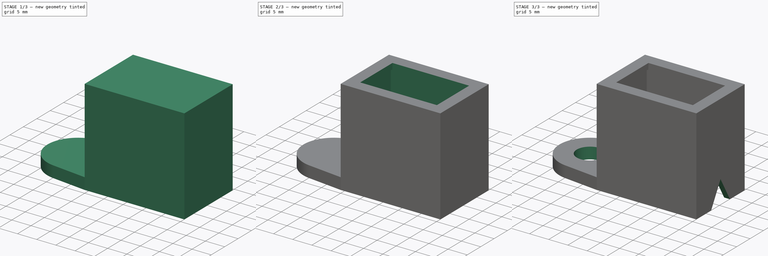
[diagram: build sequence overview — one tinted view per stage of 3, left to right]
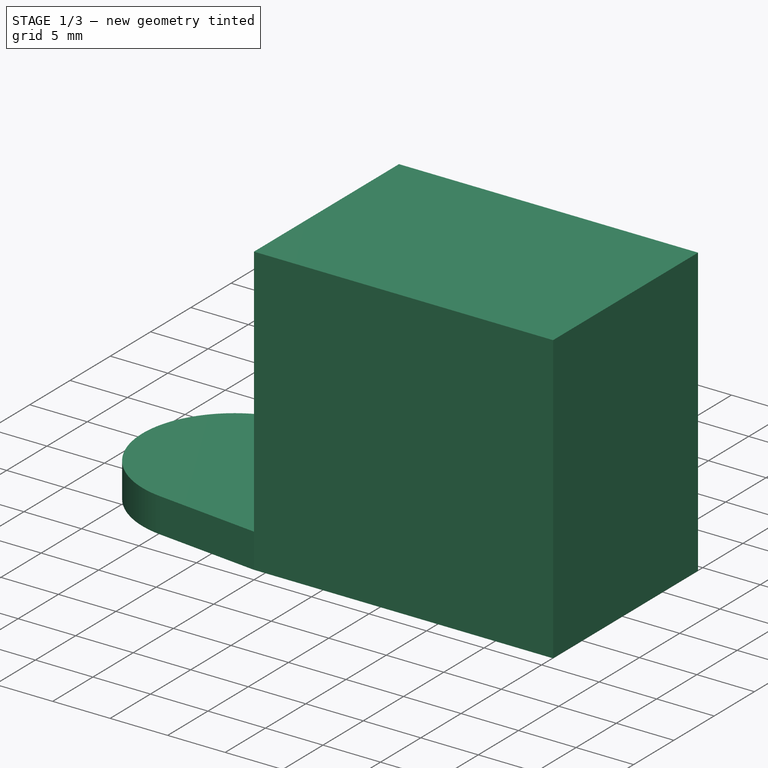
[diagram: stage 1 of 3 — iso view after this stage's code; geometry added in this stage tinted green]
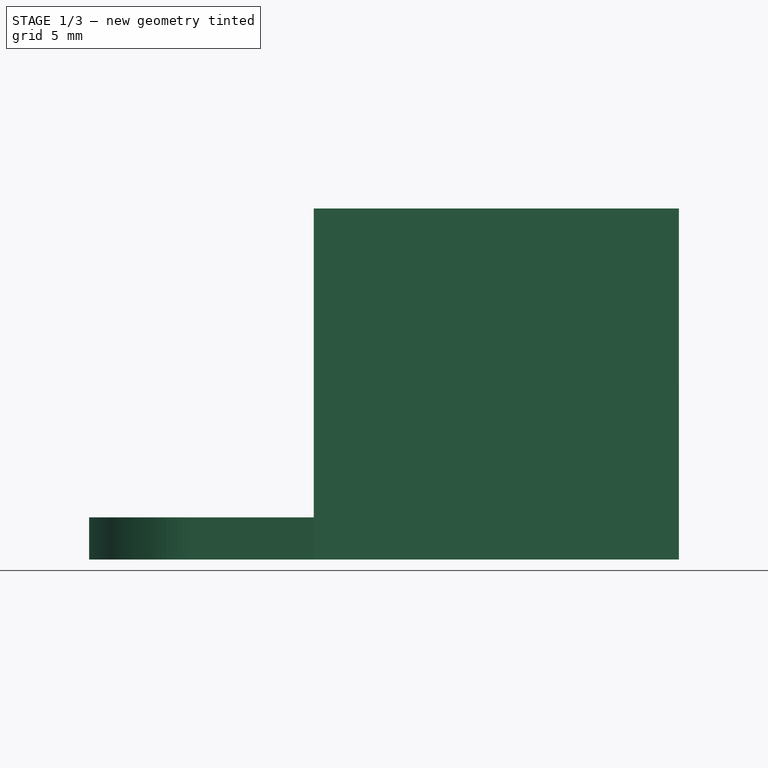
[diagram: stage 1 of 3 — front view after this stage's code; geometry added in this stage tinted green]
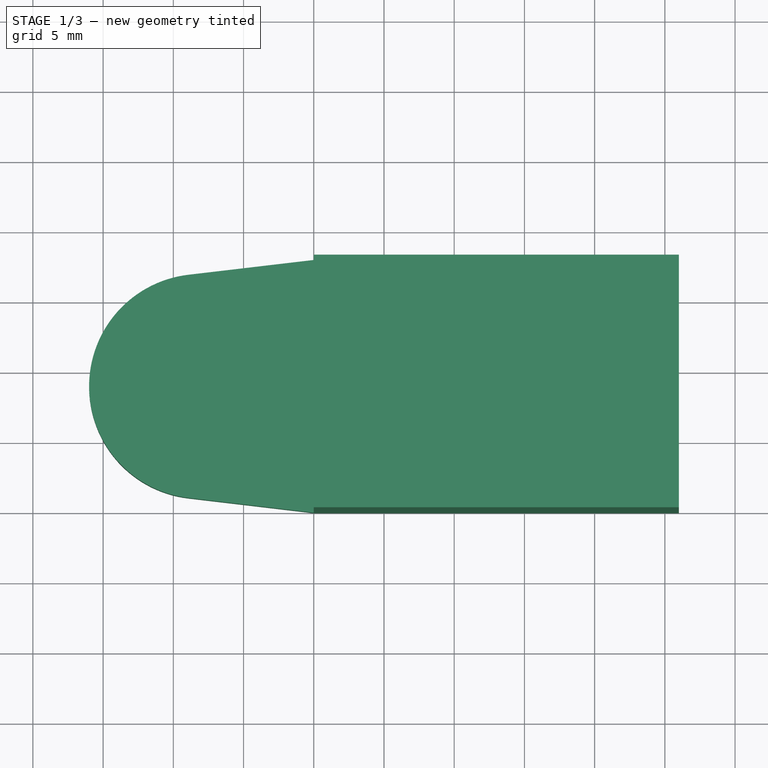
[diagram: stage 1 of 3 — top view after this stage's code; geometry added in this stage tinted green]
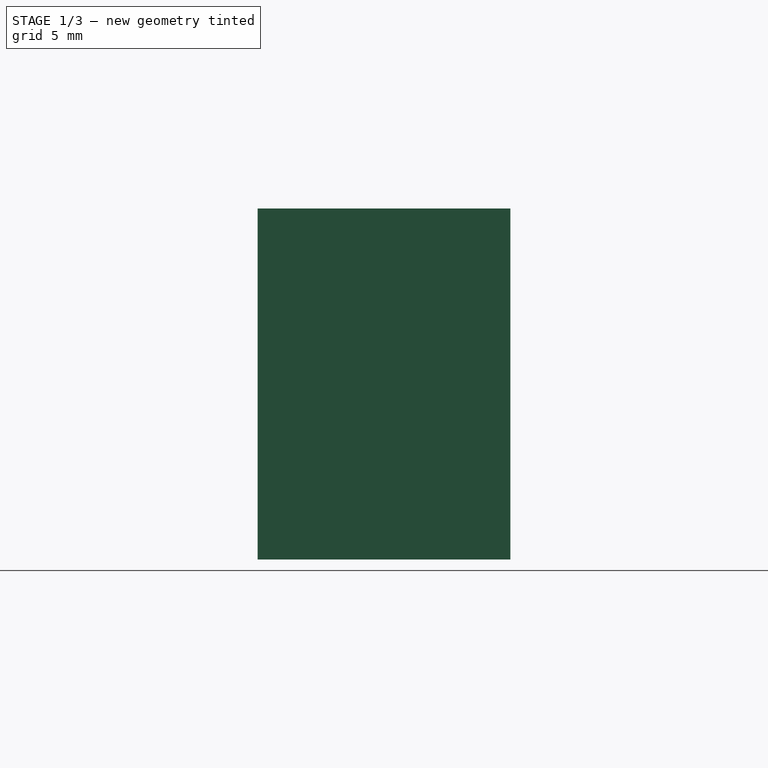
[diagram: stage 1 of 3 — right view after this stage's code; geometry added in this stage tinted green]
FCSTD DOCUMENT  (FreeCAD 2024.1R35694 (Git))
Label: switch_mount
License: All rights reserved
LicenseURL: http://en.wikipedia.org/wiki/All_rights_reserved
objects: Sketcher::SketchObject×6, PartDesign::Pocket×4, PartDesign::Pad×2, Spreadsheet::Sheet×1, PartDesign::Body×1
note: 19 computed .brp shape members not serialized (recipe doc carries the construction recipe); baked Part::Feature solids carry a one-line shape summary decoded from their .brp

FEATURE [Spreadsheet::Sheet] Spreadsheet  label="ss"
  cells = A1='whole_spacing; B1(whole_spacing)=25; A2='m6_hole_d; B2(m6_hole_d)=7; A3='wall_t; B3(wall_t)=1.5; A4='hole_w; B4(hole_w)=12; A5='hole_l; B5(hole_l)=20; A6='box_h; B6(box_h)=25; A7='box_l; B7(box_l)=26; A8='box_w; B8(box_w)=18; A9='insert_h; B9(insert_h)==box_h - wall_t; A10='insert_w; B10(insert_w)==box_w - 2 * wall_t; A11='insert_l; B11(insert_l)==box_l - 2 * wall_t; A12='m6_head_d; B12(m6_head_d)=10
FEATURE [Sketcher::SketchObject] Sketch
  FullyConstrained = true
  MapMode = 5
  Support = -> [XY_Plane]
  expr: Constraints[10] = <<ss>>.box_w
  expr: Constraints[11] = <<ss>>.box_l
  expr: Constraints[12] = <<ss>>.m6_head_d / 2 + 2 * <<ss>>.wall_t
  expr: Constraints[14] = <<ss>>.m6_head_d / 2 + 2 * <<ss>>.wall_t
  expr: Constraints[15] = <<ss>>.box_w / 2
  sketch-geometry (6):
    g0: LineSegment StartX=0 StartY=0 StartZ=0 EndX=26 EndY=0 EndZ=0
    g1: LineSegment StartX=26 StartY=0 StartZ=0 EndX=26 EndY=18 EndZ=0
    g2: LineSegment StartX=26 StartY=18 StartZ=0 EndX=0 EndY=18 EndZ=0
    g3: LineSegment StartX=0 StartY=18 StartZ=0 EndX=-8.93793 EndY=16.9448 EndZ=0
    g4: ArcOfCircle CenterX=-8 CenterY=9 CenterZ=0 NormalX=0 NormalY=0 NormalZ=1 AngleXU=0 Radius=8 StartAngle=1.68831 EndAngle=4.59488
    g5: LineSegment StartX=-8.93793 StartY=1.05517 StartZ=0 EndX=0 EndY=0 EndZ=0
  constraints (16):
    c: Coincident(g-1,g0)
    c: Horizontal(g0)
    c: Coincident(g0,g1)
    c: Vertical(g1)
    c: Coincident(g1,g2)
    c: PointOnObject(g2,g-2)
    c: Horizontal(g2)
    c: Coincident(g2,g3)
    c: Tangent(g3,g4) = -1.5708
    c: Coincident(g5,g0)
    c: DistanceY(g1,g1) = 18
    c: DistanceX(g2,g2) = 26
    c: Radius(g4) = 8
    c: Tangent(g4,g5) = -1.5708
    c: DistanceX(g4,g2) = 8
    c: DistanceY(g4,g2) = 9
FEATURE [PartDesign::Pad] Pad
  Direction = (0,0,1)
  Length = 3
  Length2 = 10
  Profile = -> Sketch
  ReferenceAxis = -> Sketch [N_Axis]
  Refine = true
  Type = 0
  expr: Length = <<ss>>.wall_t * 2
FEATURE [Sketcher::SketchObject] Sketch001
  ExternalGeometry = -> [Pad]
  FullyConstrained = true
  MapMode = 5
  Placement = pos=(0,0,3) rot=(0,0,1;0rad)
  Support = -> [Pad]
  sketch-geometry (4):
    g0: LineSegment StartX=0 StartY=0 StartZ=0 EndX=26 EndY=0 EndZ=0
    g1: LineSegment StartX=26 StartY=0 StartZ=0 EndX=26 EndY=18 EndZ=0
    g2: LineSegment StartX=26 StartY=18 StartZ=0 EndX=0 EndY=18 EndZ=0
    g3: LineSegment StartX=0 StartY=18 StartZ=0 EndX=0 EndY=0 EndZ=0
  constraints (10):
    c: Coincident(g0,g1)
    c: Coincident(g1,g2)
    c: Coincident(g2,g3)
    c: Coincident(g3,g0)
    c: Horizontal(g0)
    c: Horizontal(g2)
    c: Vertical(g1)
    c: Vertical(g3)
    c: Coincident(g0,g-1)
    c: Coincident(g1,g-5)
FEATURE [PartDesign::Pad] Pad001
  BaseFeature = -> Pad
  Direction = (0,0,1)
  Length = 22
  Length2 = 10
  Profile = -> Sketch001
  ReferenceAxis = -> Sketch001 [N_Axis]
  Refine = true
  Type = 0
  expr: Length = <<ss>>.box_h - 2 * <<ss>>.wall_t
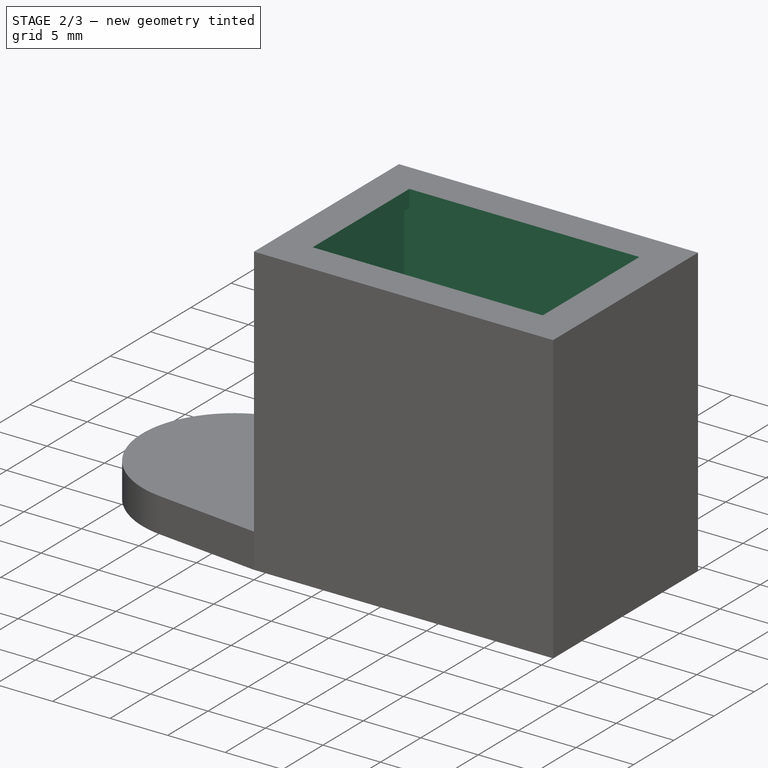
[diagram: stage 2 of 3 — iso view after this stage's code; geometry added in this stage tinted green]
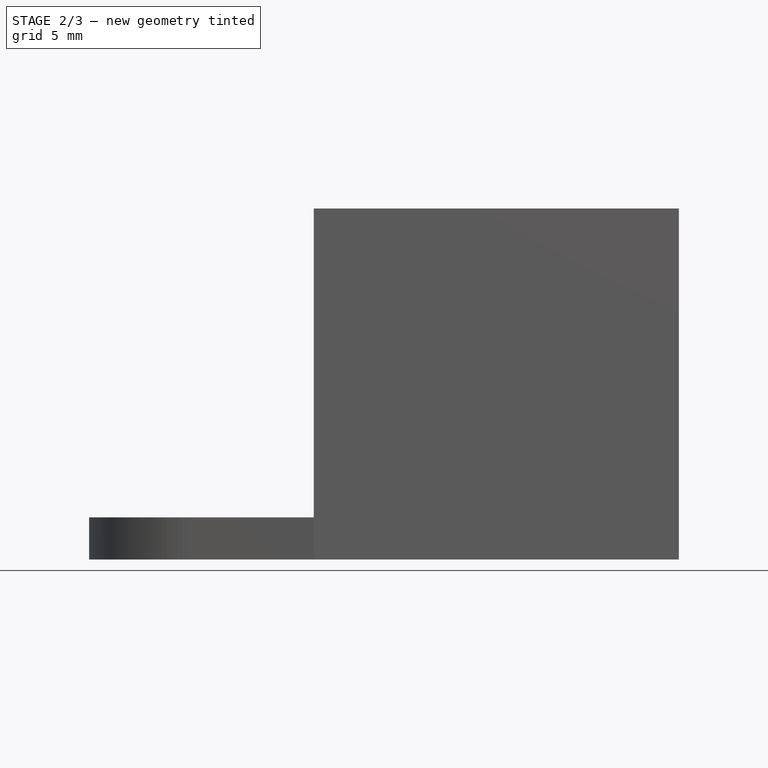
[diagram: stage 2 of 3 — front view after this stage's code; geometry added in this stage tinted green]
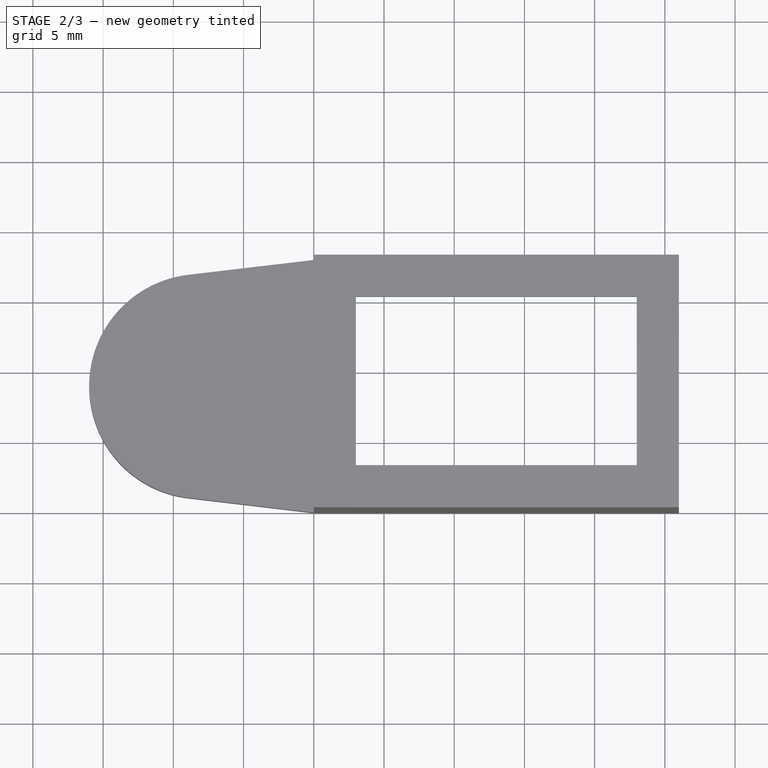
[diagram: stage 2 of 3 — top view after this stage's code; geometry added in this stage tinted green]
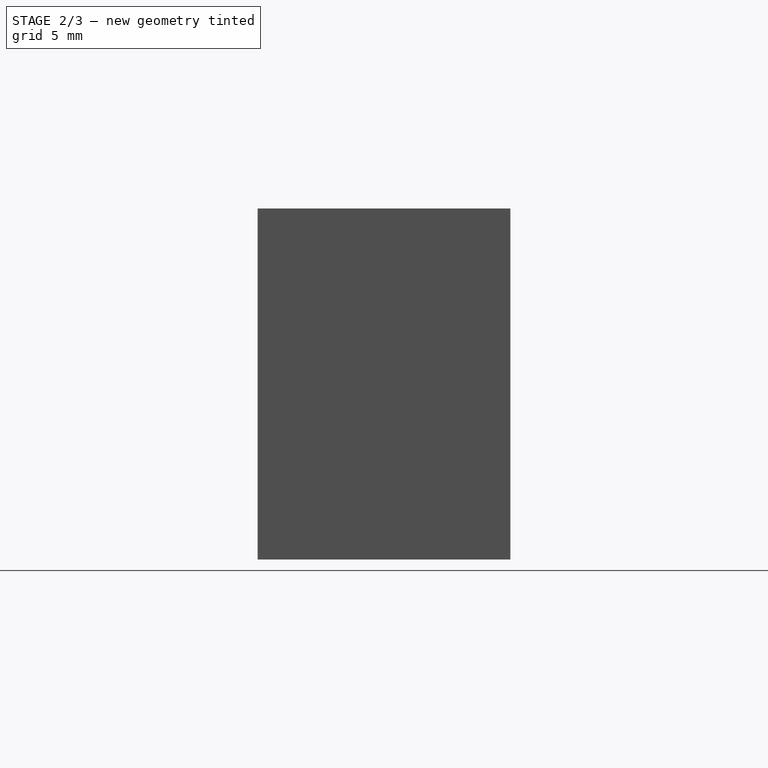
[diagram: stage 2 of 3 — right view after this stage's code; geometry added in this stage tinted green]
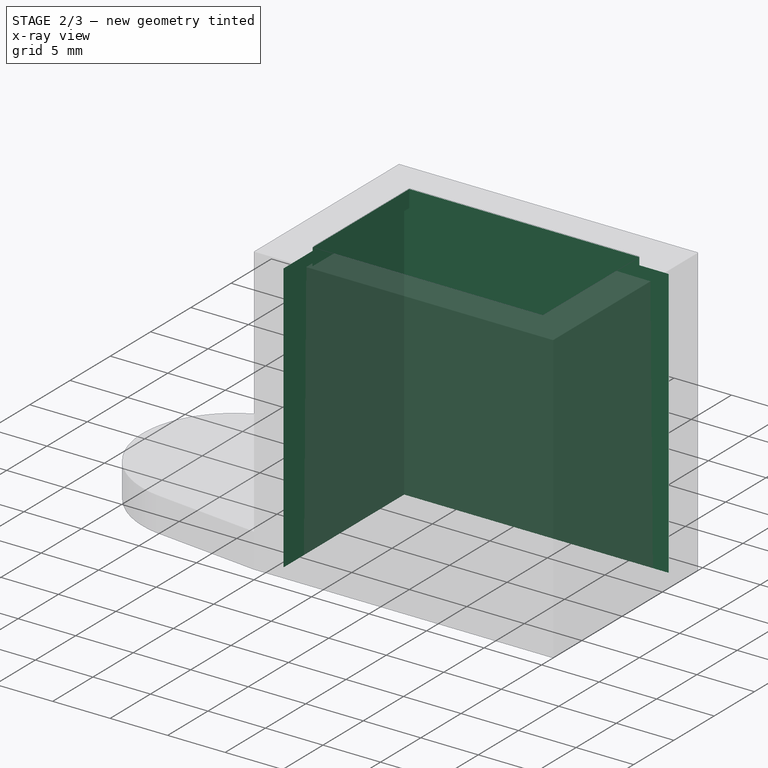
[diagram: stage 2 of 3 — x-ray composite at the iso view; earlier geometry ghosted, this stage's added geometry solid]
FEATURE [Sketcher::SketchObject] Sketch002
  ExternalGeometry = -> [Pad001]
  FullyConstrained = true
  MapMode = 5
  Placement = pos=(0,0,0) rot=(1,0,0;3.14159rad)
  Support = -> [Pad001]
  expr: Constraints[10] = (<<ss>>.box_l - <<ss>>.insert_l) / 2
  expr: Constraints[11] = (<<ss>>.box_w - <<ss>>.insert_w) / 2
  expr: Constraints[8] = <<ss>>.insert_l
  expr: Constraints[9] = <<ss>>.insert_w
  sketch-geometry (4):
    g0: LineSegment StartX=24.5 StartY=-16.5 StartZ=0 EndX=24.5 EndY=-1.5 EndZ=0
    g1: LineSegment StartX=24.5 StartY=-1.5 StartZ=0 EndX=1.5 EndY=-1.5 EndZ=0
    g2: LineSegment StartX=1.5 StartY=-1.5 StartZ=0 EndX=1.5 EndY=-16.5 EndZ=0
    g3: LineSegment StartX=1.5 StartY=-16.5 StartZ=0 EndX=24.5 EndY=-16.5 EndZ=0
  constraints (12):
    c: Coincident(g0,g1)
    c: Coincident(g1,g2)
    c: Coincident(g2,g3)
    c: Coincident(g3,g0)
    c: Vertical(g0)
    c: Vertical(g2)
    c: Horizontal(g1)
    c: Horizontal(g3)
    c: DistanceX(g1,g1) = 23
    c: DistanceY(g0,g0) = 15
    c: DistanceX(g-1,g1) = 1.5
    c: DistanceY(g1,g-1) = 1.5
FEATURE [PartDesign::Pocket] Pocket
  BaseFeature = -> Pad001
  Direction = (0,0,1)
  Length = 23.5
  Length2 = 5
  Profile = -> Sketch002
  ReferenceAxis = -> Sketch002 [N_Axis]
  Refine = true
  Type = 0
  expr: Length = <<ss>>.insert_h
FEATURE [Sketcher::SketchObject] Sketch003
  FullyConstrained = true
  MapMode = 5
  Placement = pos=(0,0,23.5) rot=(1,0,0;3.14159rad)
  Support = -> [Pocket]
  expr: Constraints[10] = (<<ss>>.box_l - <<ss>>.hole_l) / 2
  expr: Constraints[11] = <<ss>>.hole_l
  expr: Constraints[8] = <<ss>>.hole_w
  expr: Constraints[9] = (<<ss>>.box_w - <<ss>>.hole_w) / 2
  sketch-geometry (4):
    g0: LineSegment StartX=23 StartY=-15 StartZ=0 EndX=23 EndY=-3 EndZ=0
    g1: LineSegment StartX=23 StartY=-3 StartZ=0 EndX=3 EndY=-3 EndZ=0
    g2: LineSegment StartX=3 StartY=-3 StartZ=0 EndX=3 EndY=-15 EndZ=0
    g3: LineSegment StartX=3 StartY=-15 StartZ=0 EndX=23 EndY=-15 EndZ=0
  constraints (12):
    c: Coincident(g0,g1)
    c: Coincident(g1,g2)
    c: Coincident(g2,g3)
    c: Coincident(g3,g0)
    c: Vertical(g0)
    c: Vertical(g2)
    c: Horizontal(g1)
    c: Horizontal(g3)
    c: DistanceY(g2,g2) = 12
    c: DistanceY(g1,g-1) = 3
    c: DistanceX(g-1,g1) = 3
    c: DistanceX(g1,g1) = 20
FEATURE [PartDesign::Pocket] Pocket001
  BaseFeature = -> Pocket
  Direction = (0,0,1)
  Length = 5
  Length2 = 5
  Profile = -> Sketch003
  ReferenceAxis = -> Sketch003 [N_Axis]
  Refine = true
  Type = 1
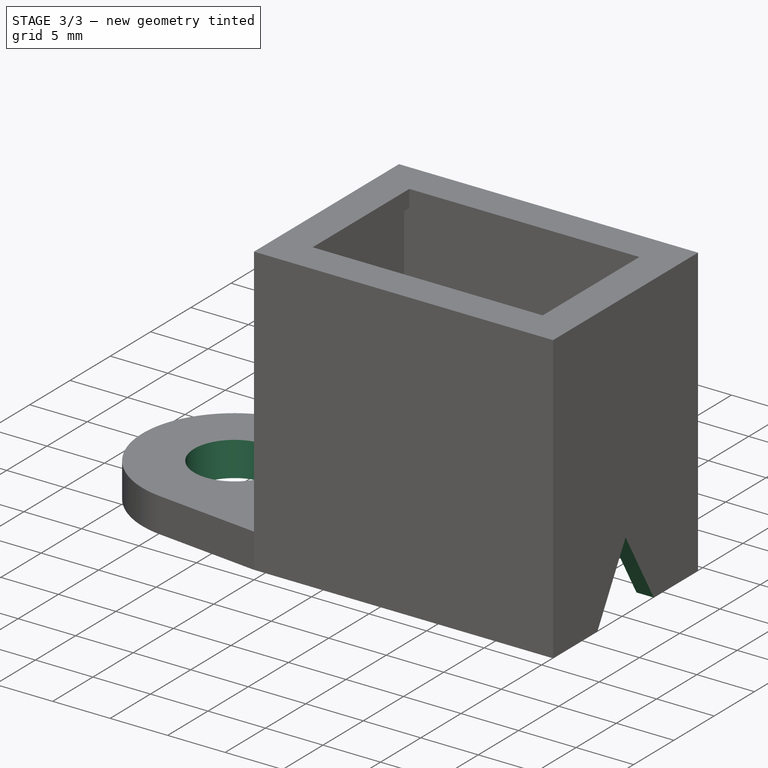
[diagram: stage 3 of 3 — iso view after this stage's code; geometry added in this stage tinted green]
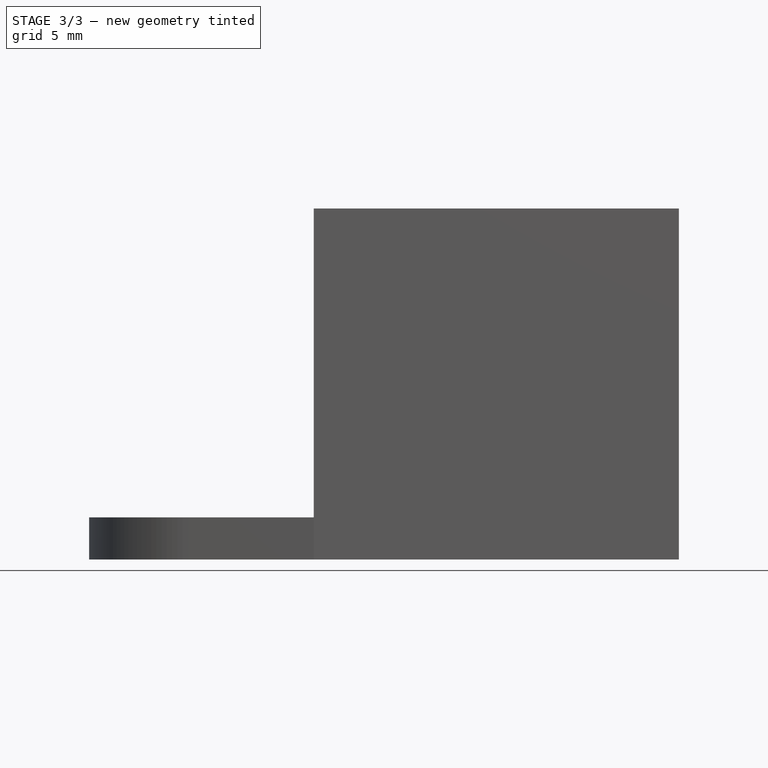
[diagram: stage 3 of 3 — front view after this stage's code; geometry added in this stage tinted green]
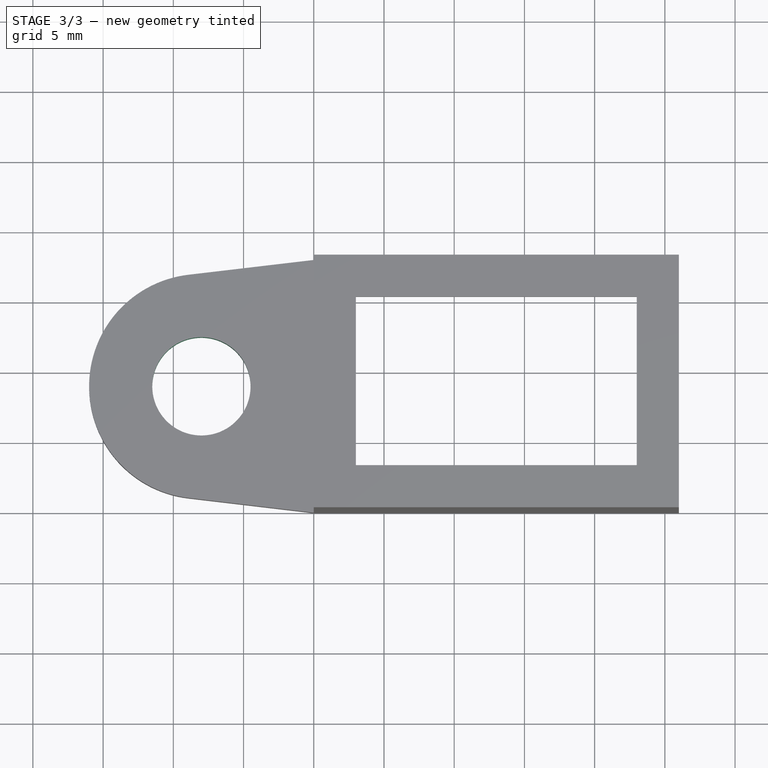
[diagram: stage 3 of 3 — top view after this stage's code; geometry added in this stage tinted green]
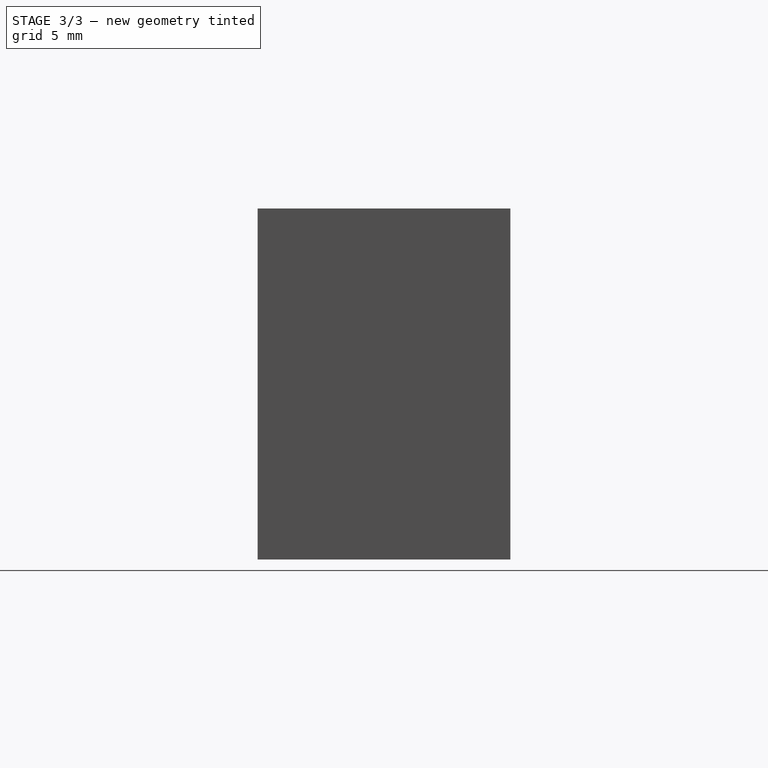
[diagram: stage 3 of 3 — right view after this stage's code; geometry added in this stage tinted green]
FEATURE [Sketcher::SketchObject] Sketch004
  ExternalGeometry = -> [Pocket001]
  FullyConstrained = true
  MapMode = 5
  Placement = pos=(0,0,0) rot=(1,0,0;3.14159rad)
  Support = -> [Pocket001]
  expr: Constraints[1] = <<ss>>.m6_hole_d
  sketch-geometry (1):
    g0: Circle CenterX=-8 CenterY=-9 CenterZ=0 NormalX=0 NormalY=0 NormalZ=1 AngleXU=0 Radius=3.5
  constraints (2):
    c: Coincident(g0,g-3)
    c: Diameter(g0) = 7
FEATURE [PartDesign::Pocket] Pocket002
  BaseFeature = -> Pocket001
  Direction = (0,0,1)
  Length = 5
  Length2 = 5
  Profile = -> Sketch004
  ReferenceAxis = -> Sketch004 [N_Axis]
  Refine = true
  Type = 1
FEATURE [Sketcher::SketchObject] Sketch005
  FullyConstrained = true
  MapMode = 5
  Placement = pos=(26,0,0) rot=(0.57735,0.57735,0.57735;2.0944rad)
  Support = -> [Pocket002]
  expr: Constraints[10] = <<ss>>.box_w / 2
  expr: Constraints[11] = <<ss>>.m6_hole_d
  sketch-geometry (4):
    g0: LineSegment StartX=12.5 StartY=0 StartZ=0 EndX=9 EndY=6.06218 EndZ=0
    g1: LineSegment StartX=9 StartY=6.06218 StartZ=0 EndX=5.5 EndY=0 EndZ=0
    g2: LineSegment StartX=5.5 StartY=0 StartZ=0 EndX=12.5 EndY=0 EndZ=0
    g3: Circle CenterX=9 CenterY=2.02073 CenterZ=0 NormalX=0 NormalY=0 NormalZ=1 AngleXU=0 Radius=4.04145
  constraints (12):
    c: Coincident(g0,g1)
    c: Coincident(g1,g2)
    c: Coincident(g2,g0)
    c: Equal(g0,g1)
    c: Equal(g0,g2)
    c: PointOnObject(g0,g3)
    c: PointOnObject(g1,g3)
    c: PointOnObject(g2,g3)
    c: DistanceY(g-1,g0) = 0
    c: DistanceY(g-1,g1) = 0
    c: DistanceX(g-1,g0) = 9
    c: DistanceX(g1,g0) = 7
FEATURE [PartDesign::Pocket] Pocket003
  BaseFeature = -> Pocket002
  Direction = (-1,0,0)
  Length = 5
  Length2 = 5
  Profile = -> Sketch005
  ReferenceAxis = -> Sketch005 [N_Axis]
  Refine = true
  Type = 2
FEATURE [PartDesign::Body] Body
  Group = -> [Sketch,Pad,Sketch001,Pad001,Sketch002,Pocket,Sketch003,Pocket001,Sketch004,Pocket002,Sketch005,Pocket003]
  Origin = -> Origin
  Tip = -> Pocket003
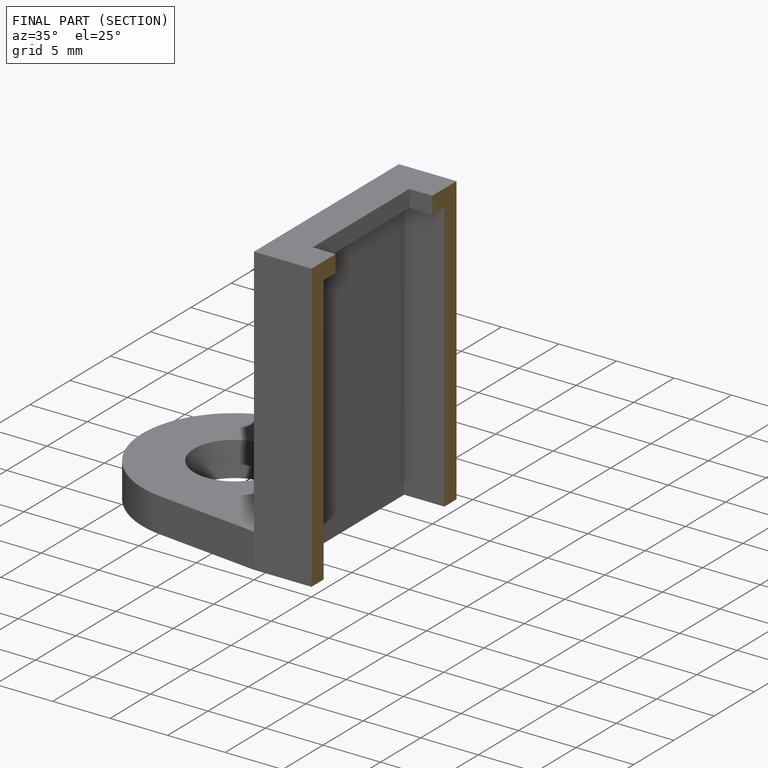
[diagram: finished part — half-section view (interior)]
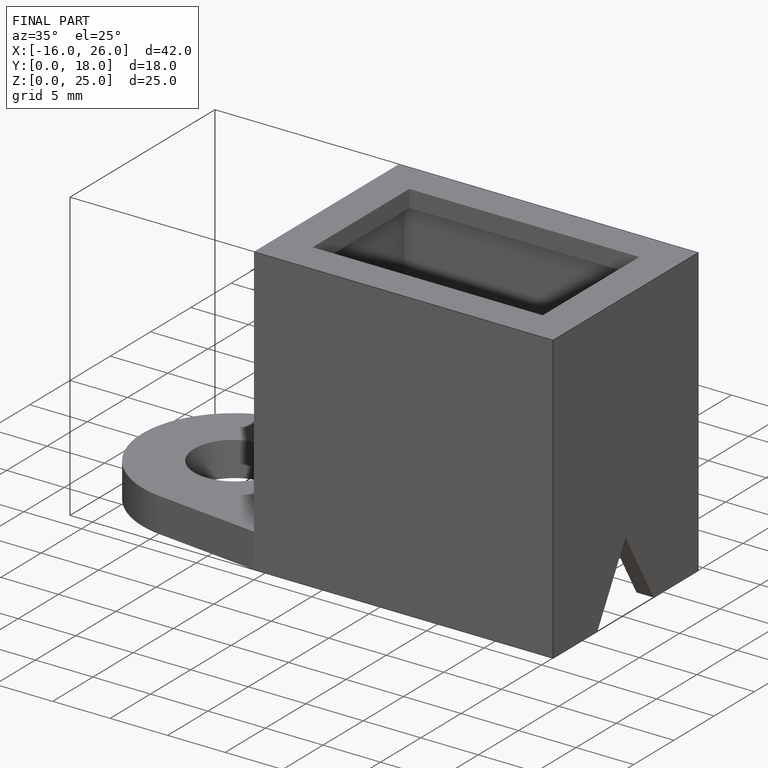
[diagram: finished part — iso view with bounding-box wireframe]
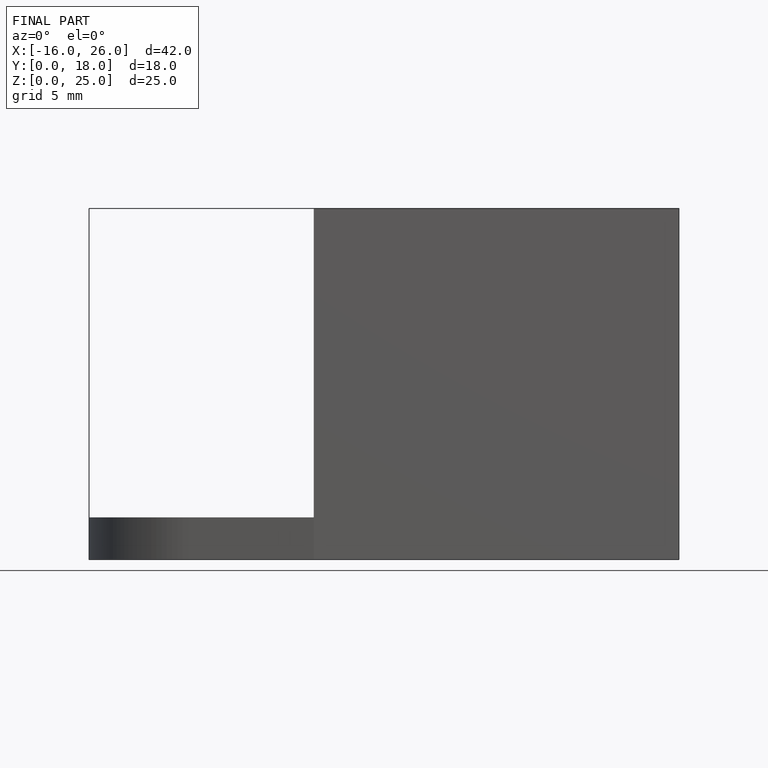
[diagram: finished part — front view with bounding-box wireframe]
